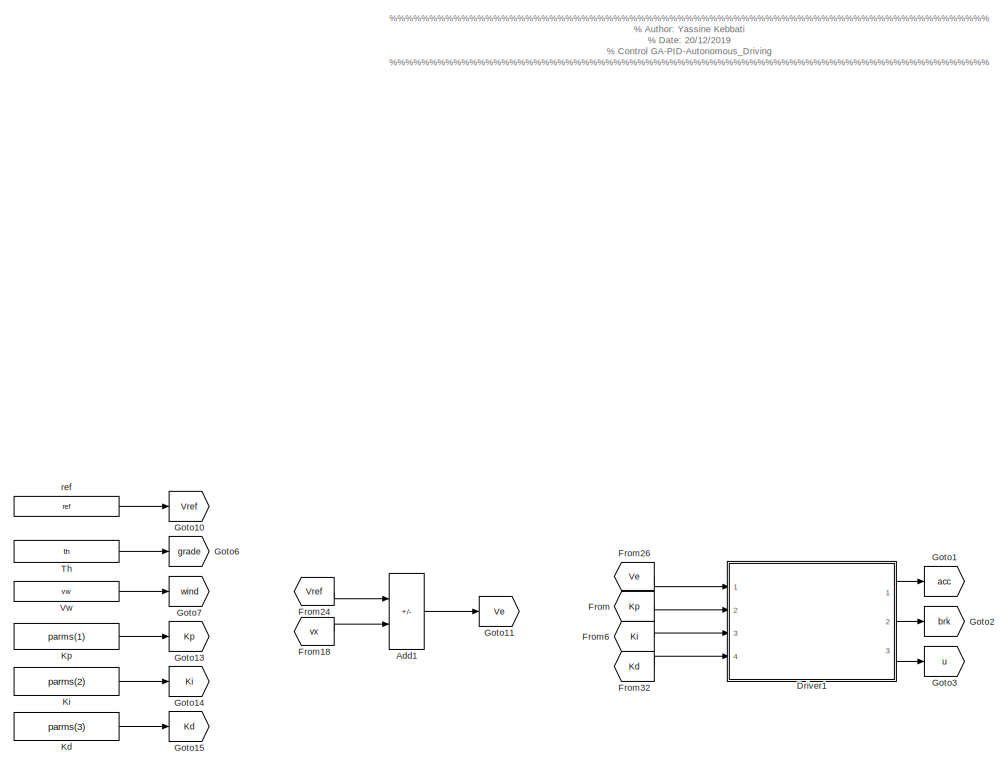
[diagram: root canvas - part 1/2, left side, full height]
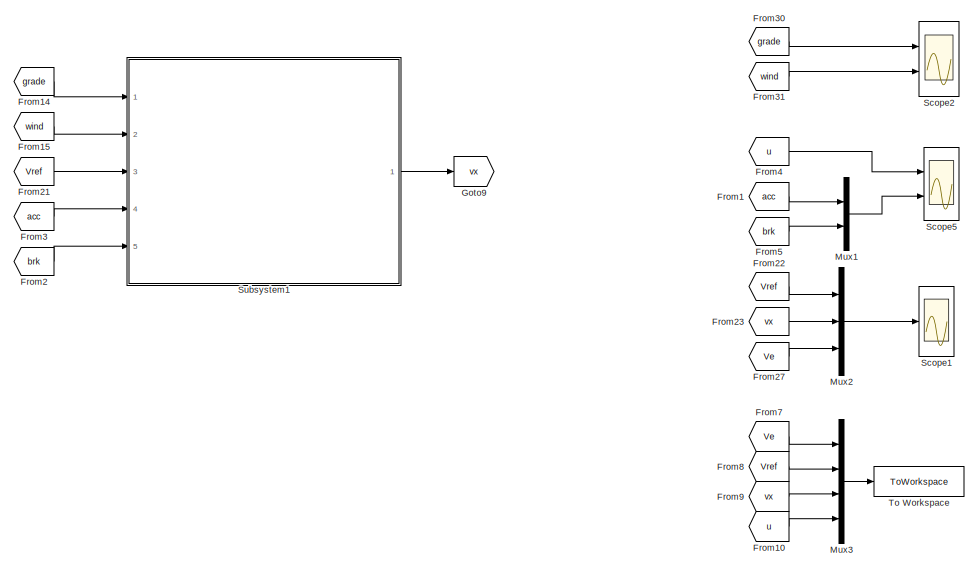
[diagram: root canvas - part 2/2, bottom right region]
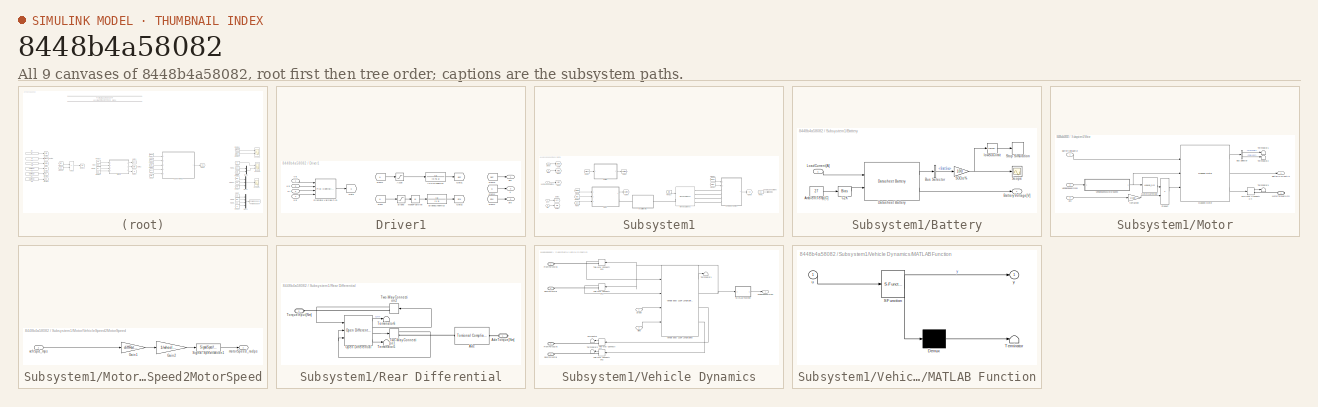
[diagram: thumbnail index - all 9 canvases of the model, root first then tree order]
MODEL slx_8448b4a58082
KIND model
CONFIG AbsTol = auto
CONFIG EnableMultiTasking = off
CONFIG FixedStep = 1e-3
CONFIG MaxStep = auto
CONFIG MinStep = auto
CONFIG RelTol = 1e-2
CONFIG SampleTimeConstraint = Unconstrained
CONFIG Solver = FixedStepAuto
CONFIG SolverName = FixedStepAuto
CONFIG StartTime = 0.0
CONFIG StopTime = 40
WORKSPACE source: MAT-file member
WORKSPACE Af = 4
BLOCK [Sum] Add1
  IconShape = rectangular
  Inputs = +-
  Ports = [2, 1]
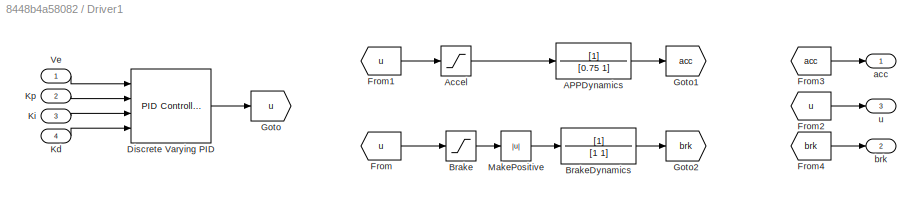
BLOCK [SubSystem] Driver1
  AncestorBlock = Wheels_Driver_VehDyn_Lib/Driver
  Ports = [4, 3]
BLOCK [TransferFcn] Driver1/APPDynamics
  Denominator = [0.75 1]
BLOCK [Saturate] Driver1/Accel
  LowerLimit = 0
  UpperLimit = 100
BLOCK [Saturate] Driver1/Brake
  LowerLimit = -100
  UpperLimit = 0
BLOCK [TransferFcn] Driver1/BrakeDynamics
  Denominator = [1 1]
BLOCK [Reference] Driver1/Discrete Varying PID  REF=simulink/Continuous/PID Controller
  Ports = [4, 1]
  SourceBlock = simulink/Continuous/PID Controller
  SourceType = PID 1dof
BLOCK [From] Driver1/From
  GotoTag = u
BLOCK [From] Driver1/From1
  GotoTag = u
BLOCK [From] Driver1/From2
  GotoTag = u
BLOCK [From] Driver1/From3
  GotoTag = acc
BLOCK [From] Driver1/From4
  GotoTag = brk
BLOCK [Goto] Driver1/Goto
  GotoTag = u
BLOCK [Goto] Driver1/Goto1
  GotoTag = acc
BLOCK [Goto] Driver1/Goto2
  GotoTag = brk
BLOCK [Inport] Driver1/Kd
  Port = 4
BLOCK [Inport] Driver1/Ki
  Port = 3
BLOCK [Inport] Driver1/Kp
  Port = 2
BLOCK [Abs] Driver1/MakePositive
  SaturateOnIntegerOverflow = off
BLOCK [Inport] Driver1/Ve
BLOCK [Outport] Driver1/acc
  VectorParamsAs1DForOutWhenUnconnected = off
BLOCK [Outport] Driver1/brk
  Port = 2
  VectorParamsAs1DForOutWhenUnconnected = off
BLOCK [Outport] Driver1/u
  Port = 3
  VectorParamsAs1DForOutWhenUnconnected = off
BLOCK [From] From
  CopyFcn = Lib_CopyFcn(gcb);
  Description = FromInternal
  GotoTag = Kp
  PreDeleteFcn = Lib_PreDeleteFcn(gcb);
  Tag = Controls_Lib
  UserDataPersistent = on
BLOCK [From] From1
  GotoTag = acc
BLOCK [From] From10
  CopyFcn = Lib_CopyFcn(gcb);
  Description = FromInternal
  GotoTag = u
  PreDeleteFcn = Lib_PreDeleteFcn(gcb);
  Tag = Controls_Lib
  UserDataPersistent = on
BLOCK [From] From14
  GotoTag = grade
BLOCK [From] From15
  GotoTag = wind
BLOCK [From] From18
  GotoTag = vx
BLOCK [From] From2
  GotoTag = brk
BLOCK [From] From21
  GotoTag = Vref
BLOCK [From] From22
  GotoTag = Vref
BLOCK [From] From23
  GotoTag = vx
BLOCK [From] From24
  GotoTag = Vref
BLOCK [From] From26
  GotoTag = Ve
BLOCK [From] From27
  GotoTag = Ve
BLOCK [From] From3
  GotoTag = acc
BLOCK [From] From30
  GotoTag = grade
BLOCK [From] From31
  GotoTag = wind
BLOCK [From] From32
  CopyFcn = Lib_CopyFcn(gcb);
  Description = FromInternal
  GotoTag = Kd
  PreDeleteFcn = Lib_PreDeleteFcn(gcb);
  Tag = Controls_Lib
  UserDataPersistent = on
BLOCK [From] From4
  GotoTag = u
BLOCK [From] From5
  GotoTag = brk
BLOCK [From] From6
  CopyFcn = Lib_CopyFcn(gcb);
  Description = FromInternal
  GotoTag = Ki
  PreDeleteFcn = Lib_PreDeleteFcn(gcb);
  Tag = Controls_Lib
  UserDataPersistent = on
BLOCK [From] From7
  CopyFcn = Lib_CopyFcn(gcb);
  Description = FromInternal
  GotoTag = Ve
  PreDeleteFcn = Lib_PreDeleteFcn(gcb);
  Tag = Controls_Lib
  UserDataPersistent = on
BLOCK [From] From8
  CopyFcn = Lib_CopyFcn(gcb);
  Description = FromInternal
  GotoTag = Vref
  PreDeleteFcn = Lib_PreDeleteFcn(gcb);
  Tag = Controls_Lib
  UserDataPersistent = on
BLOCK [From] From9
  CopyFcn = Lib_CopyFcn(gcb);
  Description = FromInternal
  GotoTag = vx
  PreDeleteFcn = Lib_PreDeleteFcn(gcb);
  Tag = Controls_Lib
  UserDataPersistent = on
BLOCK [Goto] Goto1
  GotoTag = acc
BLOCK [Goto] Goto10
  GotoTag = Vref
BLOCK [Goto] Goto11
  GotoTag = Ve
BLOCK [Goto] Goto13
  GotoTag = Kp
BLOCK [Goto] Goto14
  GotoTag = Ki
BLOCK [Goto] Goto15
  GotoTag = Kd
BLOCK [Goto] Goto2
  GotoTag = brk
BLOCK [Goto] Goto3
  GotoTag = u
BLOCK [Goto] Goto6
  GotoTag = grade
BLOCK [Goto] Goto7
  GotoTag = wind
BLOCK [Goto] Goto9
  GotoTag = vx
BLOCK [Constant] Kd
  Value = parms(3)
BLOCK [Constant] Ki
  Value = parms(2)
BLOCK [Constant] Kp
  Value = parms(1)
BLOCK [Mux] Mux1
  DisplayOption = bar
  Inputs = 2
  Ports = [2, 1]
BLOCK [Mux] Mux2
  DisplayOption = bar
  Inputs = 3
  Ports = [3, 1]
BLOCK [Mux] Mux3
  DisplayOption = bar
  Ports = [4, 1]
BLOCK [Scope] Scope1
  Floating = off
  NumInputPorts = 1
  Ports = [1]
  ScopeSpecificationString = Simulink.scopes.TimeScopeBlockCfg('CurrentConfiguration', extmgr.ConfigurationSet(extmgr.Configuration('Core','General UI',true,'FigureColor',[1 1 1]),extmgr.Configuration('Core','Source UI',true),extmgr.Configuration('Sources','WiredSimulink',true,'DataLoggingVariableName','ScopeData1'),extmgr.Configuration('Visuals','Time Domain',true,'SerializedDisplays',{struct('MinYLimReal','12.72743','MaxYLi...<+1820ch>
BLOCK [Scope] Scope2
  Floating = off
  NumInputPorts = 2
  Ports = [2]
  ScopeSpecificationString = Simulink.scopes.TimeScopeBlockCfg('CurrentConfiguration', extmgr.ConfigurationSet(extmgr.Configuration('Core','General UI',true,'FigureColor',[1 1 1]),extmgr.Configuration('Core','Source UI',true),extmgr.Configuration('Sources','WiredSimulink',true,'DataLoggingVariableName','ScopeData1'),extmgr.Configuration('Visuals','Time Domain',true,'SerializedDisplays',{struct('MinYLimReal','-10.875','MaxYLim...<+1735ch>
BLOCK [Scope] Scope5
  Floating = off
  NumInputPorts = 2
  Ports = [2]
  ScopeSpecificationString = Simulink.scopes.TimeScopeBlockCfg('CurrentConfiguration', extmgr.ConfigurationSet(extmgr.Configuration('Core','General UI',true,'FigureColor',[1 1 1]),extmgr.Configuration('Core','Source UI',true),extmgr.Configuration('Sources','WiredSimulink',true,'DataLoggingVariableName','ScopeData3'),extmgr.Configuration('Visuals','Time Domain',true,'SerializedDisplays',{struct('MinYLimReal','-12.5','MaxYLimRe...<+2500ch>
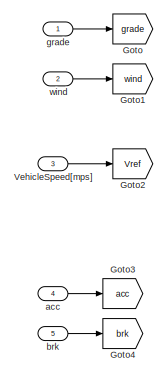
[diagram: Subsystem1 - part 1/2, left side, full height]
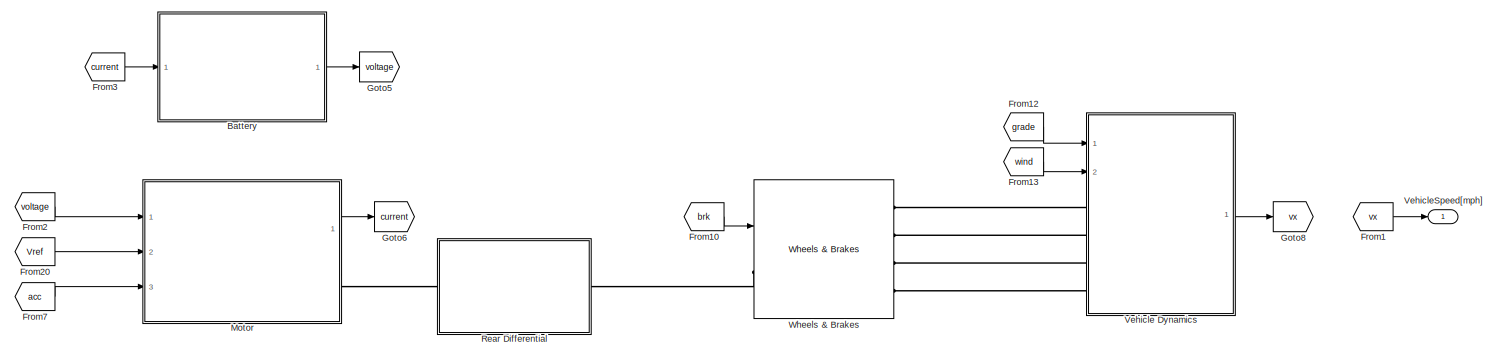
[diagram: Subsystem1 - part 2/2, most of the canvas]
BLOCK [SubSystem] Subsystem1
  Ports = [5, 1]
BLOCK [SubSystem] Subsystem1/Battery
  Ports = [1, 1]
BLOCK [Constant] Subsystem1/Battery/AmbientTemp[C]
  Value = 27
BLOCK [Outport] Subsystem1/Battery/BatteryVoltage[V]
  VectorParamsAs1DForOutWhenUnconnected = off
BLOCK [BusSelector] Subsystem1/Battery/Bus Selector
  OutputSignals = BattSoc
  Ports = [1, 1]
BLOCK [Bias] Subsystem1/Battery/C2K
  Bias = 273
  SaturateOnIntegerOverflow = off
BLOCK [Reference] Subsystem1/Battery/Datasheet Battery  REF=autolibdatasheetbattery/Datasheet Battery
  Ports = [2, 2]
  SourceBlock = autolibdatasheetbattery/Datasheet Battery
  SourceType = Datasheet Battery
BLOCK [Inport] Subsystem1/Battery/LoadCurrent[A]
BLOCK [Gain] Subsystem1/Battery/SOCto%
  Gain = 100
BLOCK [Scope] Subsystem1/Battery/Scope
  Floating = off
  NumInputPorts = 1
  Ports = [1]
  ScopeSpecificationString = Simulink.scopes.TimeScopeBlockCfg('CurrentConfiguration', extmgr.ConfigurationSet(extmgr.Configuration('Core','General UI',true),extmgr.Configuration('Core','Source UI',true),extmgr.Configuration('Sources','WiredSimulink',true,'DataLoggingVariableName','ScopeData1'),extmgr.Configuration('Visuals','Time Domain',true,'SerializedDisplays',{struct('MinYLimReal','99.24198','MaxYLimReal','100.08422','YL...<+1446ch>
BLOCK [Stop] Subsystem1/Battery/Stop Simulation
BLOCK [Reference] Subsystem1/Battery/lowSOClimit  REF=simulink/Logic and Bit
Operations/Compare
To Constant
  Ports = [1, 1]
  SourceBlock = simulink/Logic and Bit\nOperations/Compare\nTo Constant
  SourceType = Compare To Constant
BLOCK [From] Subsystem1/From1
  GotoTag = vx
BLOCK [From] Subsystem1/From10
  GotoTag = brk
BLOCK [From] Subsystem1/From12
  GotoTag = grade
BLOCK [From] Subsystem1/From13
  GotoTag = wind
BLOCK [From] Subsystem1/From2
  GotoTag = voltage
BLOCK [From] Subsystem1/From20
  GotoTag = Vref
BLOCK [From] Subsystem1/From3
  GotoTag = current
BLOCK [From] Subsystem1/From7
  GotoTag = acc
BLOCK [Goto] Subsystem1/Goto
  GotoTag = grade
BLOCK [Goto] Subsystem1/Goto1
  GotoTag = wind
BLOCK [Goto] Subsystem1/Goto2
  GotoTag = Vref
BLOCK [Goto] Subsystem1/Goto3
  GotoTag = acc
BLOCK [Goto] Subsystem1/Goto4
  GotoTag = brk
BLOCK [Goto] Subsystem1/Goto5
  GotoTag = voltage
BLOCK [Goto] Subsystem1/Goto6
  GotoTag = current
BLOCK [Goto] Subsystem1/Goto8
  GotoTag = vx
BLOCK [SubSystem] Subsystem1/Motor
  Ports = [3, 1, 0, 0, 0, 0, 1]
BLOCK [Outport] Subsystem1/Motor/BatteryCurrent[A]
  VectorParamsAs1DForOutWhenUnconnected = off
BLOCK [Inport] Subsystem1/Motor/BatteryVoltage[V]
BLOCK [BusSelector] Subsystem1/Motor/Bus Selector
  OutputSignals = MechPwr,PwrLoss
  Ports = [1, 2]
BLOCK [Reference] Subsystem1/Motor/Mapped Motor  REF=autolibmappedmotor/Mapped Motor
  Ports = [3, 3]
  SourceBlock = autolibmappedmotor/Mapped Motor
  SourceType = MappedMotor
BLOCK [Lookup_n-D] Subsystem1/Motor/MotorMaxTorque
  BreakpointsForDimension1 = motorSpeedRadPs
  ExtrapMethod = Clip
  InternalRulePriority = Speed
  NumberOfTableDimensions = 1
  Ports = [1, 1]
  RndMeth = Simplest
  Table = motorMaxTorqueNm
BLOCK [PMIOPort] Subsystem1/Motor/MotorTorque[Nm]
  Side = Right
BLOCK [Product] Subsystem1/Motor/Product
  Ports = [2, 1]
BLOCK [Terminator] Subsystem1/Motor/Terminator1
BLOCK [Terminator] Subsystem1/Motor/Terminator2
BLOCK [Terminator] Subsystem1/Motor/Terminator3
BLOCK [TwoWayConnection] Subsystem1/Motor/Two-Way Connectio n
  Ports = [1, 1, 0, 0, 0, 0, 1]
BLOCK [SubSystem] Subsystem1/Motor/VehicleSpeed2MotorSpeed
  Ports = [1, 1]
BLOCK [Gain] Subsystem1/Motor/VehicleSpeed2MotorSpeed/Gain1
  Gain = diffRatio
BLOCK [Gain] Subsystem1/Motor/VehicleSpeed2MotorSpeed/Gain2
  Gain = 1/wheelRadius
BLOCK [SignalSpecification] Subsystem1/Motor/VehicleSpeed2MotorSpeed/Signal Specification1
  Unit = rad/s
BLOCK [Outport] Subsystem1/Motor/VehicleSpeed2MotorSpeed/motorSpeed_radps
  VectorParamsAs1DForOutWhenUnconnected = off
BLOCK [Inport] Subsystem1/Motor/VehicleSpeed2MotorSpeed/vehSpd_mps
BLOCK [Inport] Subsystem1/Motor/VehicleSpeed[mps]
  Port = 2
BLOCK [Inport] Subsystem1/Motor/acc
  Port = 3
BLOCK [Gain] Subsystem1/Motor/toFraction
  Gain = 1/100
BLOCK [SubSystem] Subsystem1/Rear Differential
  Ports = [0, 0, 0, 0, 0, 1, 1]
BLOCK [Reference] Subsystem1/Rear Differential/Axle  REF=autolibsharedcoupling/Torsional Compliance
  Ports = [0, 0, 0, 0, 0, 1, 1]
  SourceBlock = autolibsharedcoupling/Torsional Compliance
  SourceType = Torsional Compliance
BLOCK [PMIOPort] Subsystem1/Rear Differential/AxleTorque[Nm]
  Side = Right
BLOCK [Reference] Subsystem1/Rear Differential/Open Differential  REF=autolibshareddiff/Open Differential
  Ports = [3, 4]
  SourceBlock = autolibshareddiff/Open Differential
  SourceType = Open Differential
BLOCK [Terminator] Subsystem1/Rear Differential/Terminator5
BLOCK [Terminator] Subsystem1/Rear Differential/Terminator6
BLOCK [PMIOPort] Subsystem1/Rear Differential/TorqueInput[Nm]
  Port = 2
  Side = Left
BLOCK [TwoWayConnection] Subsystem1/Rear Differential/Two-Way Connection1
  Ports = [1, 1, 0, 0, 0, 0, 1]
BLOCK [TwoWayConnection] Subsystem1/Rear Differential/Two-Way Connection2
  Ports = [1, 1, 0, 0, 0, 0, 1]
BLOCK [SubSystem] Subsystem1/Vehicle Dynamics
  AncestorBlock = Wheels_Driver_VehDyn_Lib/Vehicle Dynamics
  Ports = [2, 1, 0, 0, 0, 4]
BLOCK [PMIOPort] Subsystem1/Vehicle Dynamics/FrontForceX[N]
  Side = Left
BLOCK [PMIOPort] Subsystem1/Vehicle Dynamics/FrontForceZ[N]
  Port = 2
  Side = Left
BLOCK [SubSystem] Subsystem1/Vehicle Dynamics/MATLAB Function
  ErrorFcn = Stateflow.Translate.translate
  PermitHierarchicalResolution = ExplicitOnly
  Ports = [1, 1]
  SFBlockType = MATLAB Function
  TreatAsAtomicUnit = on
BLOCK [Demux] Subsystem1/Vehicle Dynamics/MATLAB Function/ Demux 
  Outputs = 1
  Ports = [1, 1]
BLOCK [S-Function] Subsystem1/Vehicle Dynamics/MATLAB Function/ SFunction 
  EnableBusSupport = on
  FunctionName = sf_sfun
  PortCounts = [1 2]
  Ports = [1, 2]
  SFcnIsStateOwnerBlock = off
  SFunctionDeploymentMode = off
  Tag = Stateflow S-Function Vehicle_model1 2
BLOCK [Terminator] Subsystem1/Vehicle Dynamics/MATLAB Function/ Terminator 
BLOCK [Inport] Subsystem1/Vehicle Dynamics/MATLAB Function/u
BLOCK [Outport] Subsystem1/Vehicle Dynamics/MATLAB Function/y
BLOCK [PMIOPort] Subsystem1/Vehicle Dynamics/RearForceX[N]
  Port = 3
  Side = Left
BLOCK [PMIOPort] Subsystem1/Vehicle Dynamics/RearForceZ[N]
  Port = 4
  Side = Left
BLOCK [Terminator] Subsystem1/Vehicle Dynamics/Terminator
BLOCK [Terminator] Subsystem1/Vehicle Dynamics/Terminator1
BLOCK [Terminator] Subsystem1/Vehicle Dynamics/Terminator2
BLOCK [TwoWayConnection] Subsystem1/Vehicle Dynamics/Two-Way Connection1
  Ports = [1, 1, 0, 0, 0, 0, 1]
BLOCK [TwoWayConnection] Subsystem1/Vehicle Dynamics/Two-Way Connection2
  Ports = [1, 1, 0, 0, 0, 0, 1]
BLOCK [TwoWayConnection] Subsystem1/Vehicle Dynamics/Two-Way Connection3
  Ports = [1, 1, 0, 0, 0, 0, 1]
BLOCK [TwoWayConnection] Subsystem1/Vehicle Dynamics/Two-Way Connection4
  Ports = [1, 1, 0, 0, 0, 0, 1]
BLOCK [Reference] Subsystem1/Vehicle Dynamics/Vehicle Body 1DOF Longitudinal  REF=autolibshared/Vehicle Body 1DOF Longitudinal
  Ports = [4, 4]
  SourceBlock = autolibshared/Vehicle Body 1DOF Longitudinal
  SourceType = Vehicle Body 1DOF Longitudinal
BLOCK [Outport] Subsystem1/Vehicle Dynamics/VehicleSpeed[mph]
  VectorParamsAs1DForOutWhenUnconnected = off
BLOCK [Inport] Subsystem1/Vehicle Dynamics/grade
BLOCK [Inport] Subsystem1/Vehicle Dynamics/wind
  Port = 2
BLOCK [Outport] Subsystem1/VehicleSpeed[mph]
BLOCK [Inport] Subsystem1/VehicleSpeed[mps]
  Port = 3
BLOCK [Reference] Subsystem1/Wheels & Brakes   REF=Wheels_Driver_VehDyn_Lib/Wheels & Brakes
  Ports = [1, 0, 0, 0, 0, 1, 4]
  SourceBlock = Wheels_Driver_VehDyn_Lib/Wheels & Brakes
  SourceType = SubSystem
BLOCK [Inport] Subsystem1/acc
  Port = 4
BLOCK [Inport] Subsystem1/brk
  Port = 5
BLOCK [Inport] Subsystem1/grade
BLOCK [Inport] Subsystem1/wind
  Port = 2
BLOCK [Constant] Th
  Value = th
BLOCK [ToWorkspace] To Workspace
  FixptAsFi = on
  MaxDataPoints = inf
  Ports = [1]
  SampleTime = -1
  SaveFormat = Timeseries
  VariableName = Data
BLOCK [Constant] Vw
  Value = vw
BLOCK [Constant] ref
  Value = ref
ANNOTATION (root): %%%%%%%%%%%%%%%%%%%%%%%%%%%%%%%%%%%%%%%%%%%%%%%%%%%%%%%%%%%%%%%%%%%%%%%%%%% % Author: Yassine Kebbati % Date: 20/12/2019 % Control GA-PID-Autonomous_Driving %%%%%%%%%%%%%%%%%%%%%%%%%%%%%%%%%%%%%%%%%%%%%%%%%%%%%%%%%%%%%%%%%%%%%%%%%%%
LINE Add1:1 -> Goto11:1
LINE Driver1:1 -> Goto1:1
LINE Driver1:2 -> Goto2:1
LINE Driver1:3 -> Goto3:1
LINE From10:1 -> Mux3:4
LINE From14:1 -> Subsystem1:1
LINE From15:1 -> Subsystem1:2
LINE From18:1 -> Add1:2
LINE From1:1 -> Mux1:1
LINE From21:1 -> Subsystem1:3
LINE From22:1 -> Mux2:1
LINE From23:1 -> Mux2:2
LINE From24:1 -> Add1:1
LINE From26:1 -> Driver1:1
LINE From27:1 -> Mux2:3
LINE From2:1 -> Subsystem1:5
LINE From30:1 -> Scope2:1
LINE From31:1 -> Scope2:2
LINE From32:1 -> Driver1:4
LINE From3:1 -> Subsystem1:4
LINE From4:1 -> Scope5:1
LINE From5:1 -> Mux1:2
LINE From6:1 -> Driver1:3
LINE From7:1 -> Mux3:1
LINE From8:1 -> Mux3:2
LINE From9:1 -> Mux3:3
LINE From:1 -> Driver1:2
LINE Kd:1 -> Goto15:1
LINE Ki:1 -> Goto14:1
LINE Kp:1 -> Goto13:1
LINE Mux1:1 -> Scope5:2
LINE Mux2:1 -> Scope1:1
LINE Mux3:1 -> To Workspace:1
LINE Subsystem1/Battery/AmbientTemp[C]:1 -> Subsystem1/Battery/C2K:1
LINE Subsystem1/Battery/Bus Selector:1 -> Subsystem1/Battery/SOCto%:1
LINE Subsystem1/Battery/C2K:1 -> Subsystem1/Battery/Datasheet Battery:2
LINE Subsystem1/Battery/Datasheet Battery:1 -> Subsystem1/Battery/Bus Selector:1
LINE Subsystem1/Battery/Datasheet Battery:2 -> Subsystem1/Battery/BatteryVoltage[V]:1
LINE Subsystem1/Battery/LoadCurrent[A]:1 -> Subsystem1/Battery/Datasheet Battery:1
NET Subsystem1/Battery/SOCto%:1 -> Subsystem1/Battery/Scope:1, Subsystem1/Battery/lowSOClimit:1
LINE Subsystem1/Battery/lowSOClimit:1 -> Subsystem1/Battery/Stop Simulation:1
LINE Subsystem1/Battery:1 -> Subsystem1/Goto5:1
LINE Subsystem1/From10:1 -> Subsystem1/Wheels & Brakes :1
LINE Subsystem1/From12:1 -> Subsystem1/Vehicle Dynamics:1
LINE Subsystem1/From13:1 -> Subsystem1/Vehicle Dynamics:2
LINE Subsystem1/From1:1 -> Subsystem1/VehicleSpeed[mph]:1
LINE Subsystem1/From20:1 -> Subsystem1/Motor:2
LINE Subsystem1/From2:1 -> Subsystem1/Motor:1
LINE Subsystem1/From3:1 -> Subsystem1/Battery:1
LINE Subsystem1/From7:1 -> Subsystem1/Motor:3
LINE Subsystem1/Motor/BatteryVoltage[V]:1 -> Subsystem1/Motor/Mapped Motor:1
LINE Subsystem1/Motor/Bus Selector:1 -> Subsystem1/Motor/Terminator1:1
LINE Subsystem1/Motor/Bus Selector:2 -> Subsystem1/Motor/Terminator2:1
LINE Subsystem1/Motor/Mapped Motor:1 -> Subsystem1/Motor/Bus Selector:1
LINE Subsystem1/Motor/Mapped Motor:2 -> Subsystem1/Motor/BatteryCurrent[A]:1
LINE Subsystem1/Motor/Mapped Motor:3 -> Subsystem1/Motor/Two-Way Connectio n:1
LINE Subsystem1/Motor/MotorMaxTorque:1 -> Subsystem1/Motor/Product:1
LINE Subsystem1/Motor/Product:1 -> Subsystem1/Motor/Mapped Motor:3
LINE Subsystem1/Motor/Two-Way Connectio n:1 -> Subsystem1/Motor/Terminator3:1
LINE Subsystem1/Motor/VehicleSpeed2MotorSpeed/Gain1:1 -> Subsystem1/Motor/VehicleSpeed2MotorSpeed/Gain2:1
LINE Subsystem1/Motor/VehicleSpeed2MotorSpeed/Gain2:1 -> Subsystem1/Motor/VehicleSpeed2MotorSpeed/Signal Specification1:1
LINE Subsystem1/Motor/VehicleSpeed2MotorSpeed/Signal Specification1:1 -> Subsystem1/Motor/VehicleSpeed2MotorSpeed/motorSpeed_radps:1
LINE Subsystem1/Motor/VehicleSpeed2MotorSpeed/vehSpd_mps:1 -> Subsystem1/Motor/VehicleSpeed2MotorSpeed/Gain1:1
NET Subsystem1/Motor/VehicleSpeed2MotorSpeed:1 -> Subsystem1/Motor/Mapped Motor:2, Subsystem1/Motor/MotorMaxTorque:1
LINE Subsystem1/Motor/VehicleSpeed[mps]:1 -> Subsystem1/Motor/VehicleSpeed2MotorSpeed:1
LINE Subsystem1/Motor/acc:1 -> Subsystem1/Motor/toFraction:1
LINE Subsystem1/Motor/toFraction:1 -> Subsystem1/Motor/Product:2
LINE Subsystem1/Motor:1 -> Subsystem1/Goto6:1
LINE Subsystem1/Rear Differential/Open Differential:1 -> Subsystem1/Rear Differential/Terminator6:1
LINE Subsystem1/Rear Differential/Open Differential:2 -> Subsystem1/Rear Differential/Two-Way Connection2:1
LINE Subsystem1/Rear Differential/Open Differential:3 -> Subsystem1/Rear Differential/Two-Way Connection1:1
LINE Subsystem1/Rear Differential/Open Differential:4 -> Subsystem1/Rear Differential/Terminator5:1
NET Subsystem1/Rear Differential/Two-Way Connection1:1 -> Subsystem1/Rear Differential/Open Differential:2, Subsystem1/Rear Differential/Open Differential:3
LINE Subsystem1/Rear Differential/Two-Way Connection2:1 -> Subsystem1/Rear Differential/Open Differential:1
LINE Subsystem1/Vehicle Dynamics:1 -> Subsystem1/Goto8:1
LINE Subsystem1/VehicleSpeed[mps]:1 -> Subsystem1/Goto2:1
LINE Subsystem1/acc:1 -> Subsystem1/Goto3:1
LINE Subsystem1/brk:1 -> Subsystem1/Goto4:1
LINE Subsystem1/grade:1 -> Subsystem1/Goto:1
LINE Subsystem1/wind:1 -> Subsystem1/Goto1:1
LINE Subsystem1:1 -> Goto9:1
LINE Th:1 -> Goto6:1
LINE Vw:1 -> Goto7:1
LINE ref:1 -> Goto10:1
PLINE Subsystem1/Motor/MotorTorque[Nm]:RConn1 -- Subsystem1/Motor/Two-Way Connectio n:RConn1
PLINE Subsystem1/Motor:RConn1 -- Subsystem1/Rear Differential:LConn1
PLINE Subsystem1/Rear Differential/Axle:LConn1 -- Subsystem1/Rear Differential/Two-Way Connection1:RConn1
PLINE Subsystem1/Rear Differential/Axle:RConn1 -- Subsystem1/Rear Differential/AxleTorque[Nm]:RConn1
PLINE Subsystem1/Rear Differential/TorqueInput[Nm]:RConn1 -- Subsystem1/Rear Differential/Two-Way Connection2:RConn1
PLINE Subsystem1/Rear Differential:RConn1 -- Subsystem1/Wheels & Brakes :LConn1
PLINE Subsystem1/Vehicle Dynamics:LConn1 -- Subsystem1/Wheels & Brakes :RConn1
PLINE Subsystem1/Vehicle Dynamics:LConn2 -- Subsystem1/Wheels & Brakes :RConn2
PLINE Subsystem1/Vehicle Dynamics:LConn3 -- Subsystem1/Wheels & Brakes :RConn3
PLINE Subsystem1/Vehicle Dynamics:LConn4 -- Subsystem1/Wheels & Brakes :RConn4
note: NET lines group one-source signal fan-out (src -> all destinations, sorted); 1:1 wires keep LINE
CHART Subsystem1/Vehicle Dynamics/MATLAB Function states=1 transitions=1
  STATE_LABEL 'eML_blk_kernel()'
  STATE_LABEL 'SCRIPT:\nfunction y = fcn(u)\nif u > 10^5;\n    u = 10^5;\nelseif u < -10^5;\n    u=-10^5;\nend\ny = u;\n'
